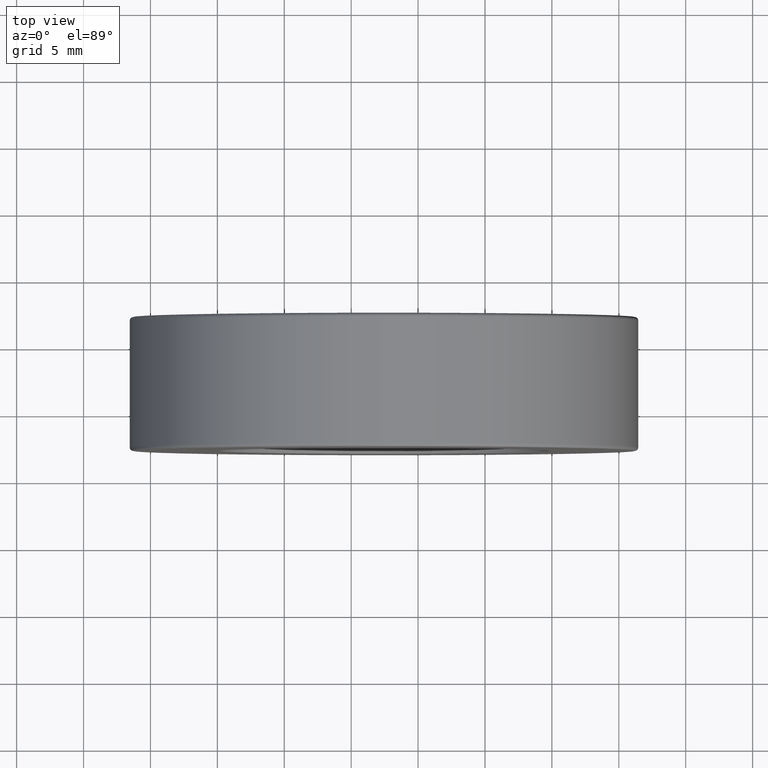
[diagram: clean part render]
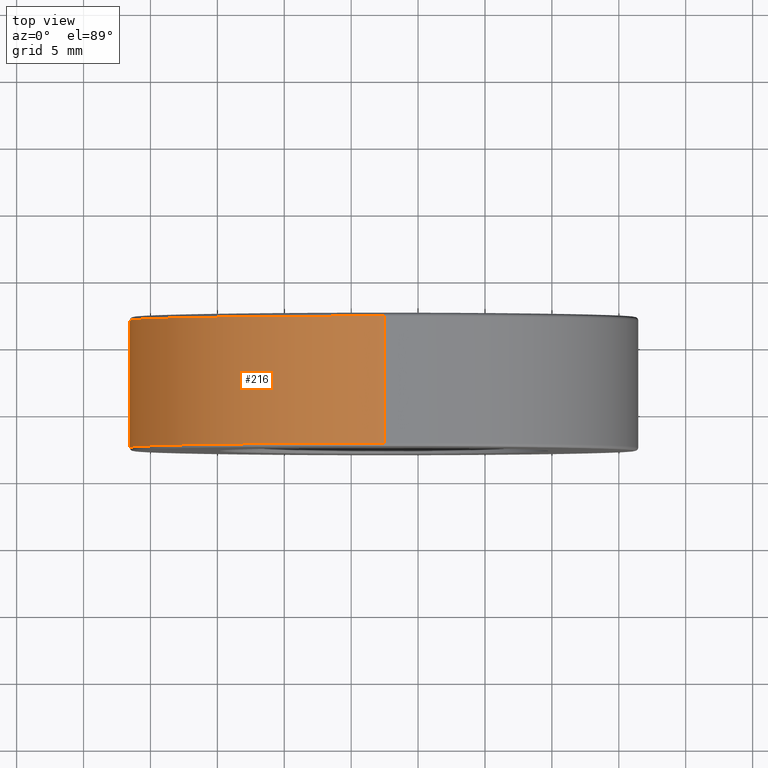
[diagram: same view with one face highlighted and labeled with its STEP entity id]
A machine part, top view. The second image highlights one B-rep face of the part: STEP entity #216.
In plain terms, the highlighted cylindrical surface (partial cylindrical patch) has radius 19 mm, axis along (-0, -1, -0).
Its self-contained STEP definition (entity closure, byte-faithful):
#5 = EDGE_CURVE ( 'NONE', #523, #37, #374, .T. ) ;
#9 = CARTESIAN_POINT ( 'NONE',  ( -7.546808913101048510, 1.856404872697271946, 56.99999999999999289 ) ) ;
#10 = ORIENTED_EDGE ( 'NONE', *, *, #140, .T. ) ;
#37 = VERTEX_POINT ( 'NONE', #417 ) ;
#55 = DIRECTION ( 'NONE',  ( -0.000000000000000000, -1.000000000000000000, -0.000000000000000000 ) ) ;
#75 = ORIENTED_EDGE ( 'NONE', *, *, #422, .T. ) ;
#87 = AXIS2_PLACEMENT_3D ( 'NONE', #329, #171, #551 ) ;
#89 = CARTESIAN_POINT ( 'NONE',  ( -7.546808913101048510, 2.106404872697272168, 19.00000000000000000 ) ) ;
#140 = EDGE_CURVE ( 'NONE', #188, #523, #401, .T. ) ;
#152 = VECTOR ( 'NONE', #238, 1000.000000000000000 ) ;
#156 = DIRECTION ( 'NONE',  ( 0.000000000000000000, 0.000000000000000000, 1.000000000000000000 ) ) ;
#170 = CARTESIAN_POINT ( 'NONE',  ( -7.546808913101048510, -7.643595127302727832, 38.00000000000000000 ) ) ;
#171 = DIRECTION ( 'NONE',  ( -0.000000000000000000, -1.000000000000000000, -0.000000000000000000 ) ) ;
#183 = CYLINDRICAL_SURFACE ( 'NONE', #87, 19.00000000000000000 ) ;
#188 = VERTEX_POINT ( 'NONE', #9 ) ;
#201 = AXIS2_PLACEMENT_3D ( 'NONE', #396, #55, #358 ) ;
#205 = LINE ( 'NONE', #493, #277 ) ;
#216 = ADVANCED_FACE ( 'NONE', ( #419 ), #183, .T. ) ;
#238 = DIRECTION ( 'NONE',  ( -0.000000000000000000, -1.000000000000000000, -0.000000000000000000 ) ) ;
#250 = CIRCLE ( 'NONE', #437, 18.99999999999999645 ) ;
#277 = VECTOR ( 'NONE', #305, 1000.000000000000000 ) ;
#297 = EDGE_LOOP ( 'NONE', ( #536, #10, #492, #75 ) ) ;
#303 = VERTEX_POINT ( 'NONE', #423 ) ;
#305 = DIRECTION ( 'NONE',  ( -0.000000000000000000, -1.000000000000000000, -0.000000000000000000 ) ) ;
#329 = CARTESIAN_POINT ( 'NONE',  ( -7.546808913101048510, 2.106404872697272168, 38.00000000000000000 ) ) ;
#358 = DIRECTION ( 'NONE',  ( 0.000000000000000000, 0.000000000000000000, 1.000000000000000000 ) ) ;
#374 = LINE ( 'NONE', #89, #152 ) ;
#382 = EDGE_CURVE ( 'NONE', #188, #303, #205, .T. ) ;
#396 = CARTESIAN_POINT ( 'NONE',  ( -7.546808913101048510, 1.856404872697271946, 38.00000000000000000 ) ) ;
#401 = CIRCLE ( 'NONE', #201, 18.99999999999999645 ) ;
#417 = CARTESIAN_POINT ( 'NONE',  ( -7.546808913101048510, -7.643595127302727832, 19.00000000000000000 ) ) ;
#419 = FACE_OUTER_BOUND ( 'NONE', #297, .T. ) ;
#422 = EDGE_CURVE ( 'NONE', #37, #303, #250, .T. ) ;
#423 = CARTESIAN_POINT ( 'NONE',  ( -7.546808913101045846, -7.643595127302727832, 56.99999999999999289 ) ) ;
#437 = AXIS2_PLACEMENT_3D ( 'NONE', #170, #439, #156 ) ;
#439 = DIRECTION ( 'NONE',  ( 0.000000000000000000, 1.000000000000000000, 0.000000000000000000 ) ) ;
#492 = ORIENTED_EDGE ( 'NONE', *, *, #5, .T. ) ;
#493 = CARTESIAN_POINT ( 'NONE',  ( -7.546808913101045846, 2.106404872697272168, 56.99999999999999289 ) ) ;
#501 = CARTESIAN_POINT ( 'NONE',  ( -7.546808913101044958, 1.856404872697271946, 19.00000000000000000 ) ) ;
#523 = VERTEX_POINT ( 'NONE', #501 ) ;
#536 = ORIENTED_EDGE ( 'NONE', *, *, #382, .F. ) ;
#551 = DIRECTION ( 'NONE',  ( 0.000000000000000000, 0.000000000000000000, -1.000000000000000000 ) ) ;